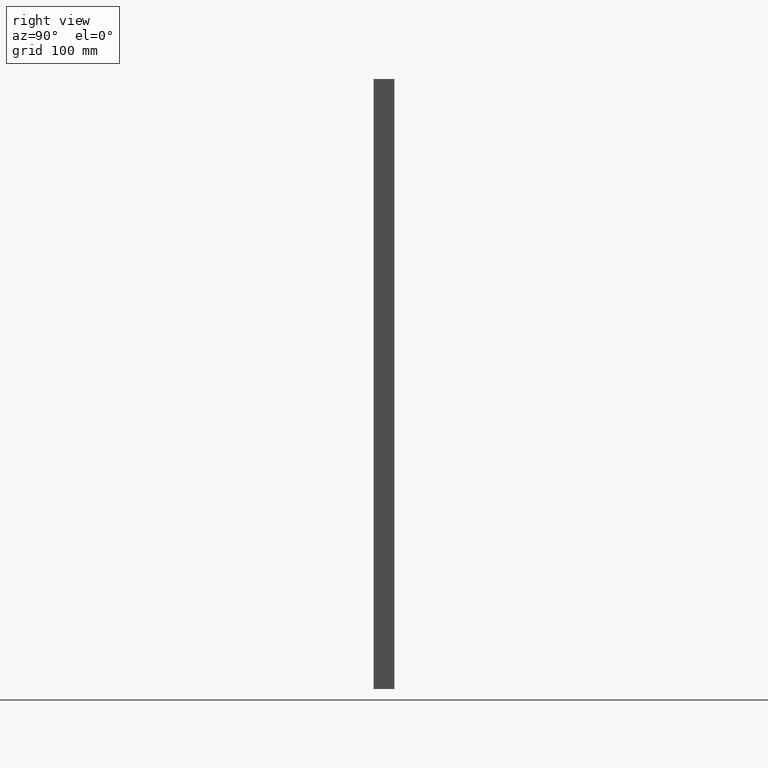
[diagram: clean part render]
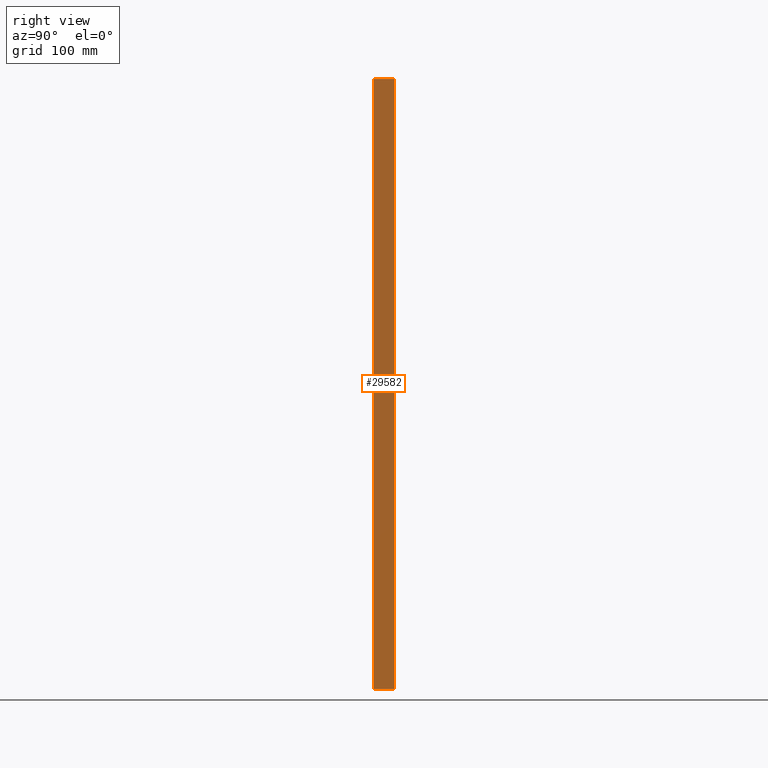
[diagram: same view with one face highlighted and labeled with its STEP entity id]
A machine part, right view. The second image highlights one B-rep face of the part: STEP entity #29582.
In plain terms, the highlighted planar face has unit normal (1, -0, -0).
Its self-contained STEP definition (entity closure, byte-faithful):
#4 = DIRECTION ( 'NONE',  ( 3.061616997868383100E-016, 1.000000000000000000, 0.0000000000000000000 ) ) ;
#2127 = DIRECTION ( 'NONE',  ( -3.061616997868383600E-016, -1.000000000000000000, -3.061616997868382600E-016 ) ) ;
#2601 = EDGE_CURVE ( 'NONE', #24038, #23557, #21773, .T. ) ;
#3099 = VERTEX_POINT ( 'NONE', #39002 ) ;
#4705 = VECTOR ( 'NONE', #5420, 1000.000000000000000 ) ;
#5150 = CARTESIAN_POINT ( 'NONE',  ( 389.9999999999999400, 10.00000000000000200, -590.0000000000000000 ) ) ;
#5420 = DIRECTION ( 'NONE',  ( 9.408669700213191800E-017, 0.0000000000000000000, 1.000000000000000000 ) ) ;
#5776 = EDGE_CURVE ( 'NONE', #24038, #3099, #23610, .T. ) ;
#7465 = EDGE_LOOP ( 'NONE', ( #35494, #20142, #14956, #39603 ) ) ;
#7667 = CARTESIAN_POINT ( 'NONE',  ( 390.0000000000000000, 9.999999999999895200, -590.0000000000000000 ) ) ;
#10985 = LINE ( 'NONE', #20692, #24048 ) ;
#12359 = CARTESIAN_POINT ( 'NONE',  ( 390.0000000000000000, 9.999999999999895200, -590.0000000000000000 ) ) ;
#13511 = CARTESIAN_POINT ( 'NONE',  ( 390.0000000000000600, 10.00000000000000200, 5.551115123125782700E-014 ) ) ;
#14956 = ORIENTED_EDGE ( 'NONE', *, *, #5776, .F. ) ;
#16653 = VERTEX_POINT ( 'NONE', #13511 ) ;
#16878 = EDGE_CURVE ( 'NONE', #16653, #3099, #10985, .T. ) ;
#17111 = DIRECTION ( 'NONE',  ( 9.408669700213191800E-017, 0.0000000000000000000, 1.000000000000000000 ) ) ;
#19833 = CARTESIAN_POINT ( 'NONE',  ( 389.9999999999998900, -10.00000000000000000, -590.0000000000000000 ) ) ;
#20142 = ORIENTED_EDGE ( 'NONE', *, *, #16878, .T. ) ;
#20692 = CARTESIAN_POINT ( 'NONE',  ( 390.0000000000000600, 9.999999999999714000, 1.110223024625156500E-013 ) ) ;
#21773 = LINE ( 'NONE', #7667, #37710 ) ;
#23557 = VERTEX_POINT ( 'NONE', #39473 ) ;
#23610 = LINE ( 'NONE', #19833, #24084 ) ;
#24038 = VERTEX_POINT ( 'NONE', #29147 ) ;
#24048 = VECTOR ( 'NONE', #2127, 1000.000000000000000 ) ;
#24084 = VECTOR ( 'NONE', #17111, 1000.000000000000000 ) ;
#24654 = DIRECTION ( 'NONE',  ( 1.000000000000000000, -3.061616997868383100E-016, -9.408669700213191800E-017 ) ) ;
#25282 = EDGE_CURVE ( 'NONE', #23557, #16653, #28385, .T. ) ;
#26071 = DIRECTION ( 'NONE',  ( 3.061616997868382600E-016, 1.000000000000000000, -3.061616997868382600E-016 ) ) ;
#27887 = FACE_OUTER_BOUND ( 'NONE', #7465, .T. ) ;
#28385 = LINE ( 'NONE', #5150, #4705 ) ;
#29147 = CARTESIAN_POINT ( 'NONE',  ( 389.9999999999998900, -10.00000000000000000, -590.0000000000000000 ) ) ;
#29582 = ADVANCED_FACE ( 'NONE', ( #27887 ), #34519, .T. ) ;
#34519 = PLANE ( 'NONE',  #36956 ) ;
#35494 = ORIENTED_EDGE ( 'NONE', *, *, #25282, .T. ) ;
#36956 = AXIS2_PLACEMENT_3D ( 'NONE', #12359, #24654, #4 ) ;
#37710 = VECTOR ( 'NONE', #26071, 1000.000000000000000 ) ;
#39002 = CARTESIAN_POINT ( 'NONE',  ( 389.9999999999998900, -10.00000000000000000, -2.220446049250313100E-013 ) ) ;
#39473 = CARTESIAN_POINT ( 'NONE',  ( 389.9999999999999400, 10.00000000000000200, -590.0000000000000000 ) ) ;
#39603 = ORIENTED_EDGE ( 'NONE', *, *, #2601, .T. ) ;